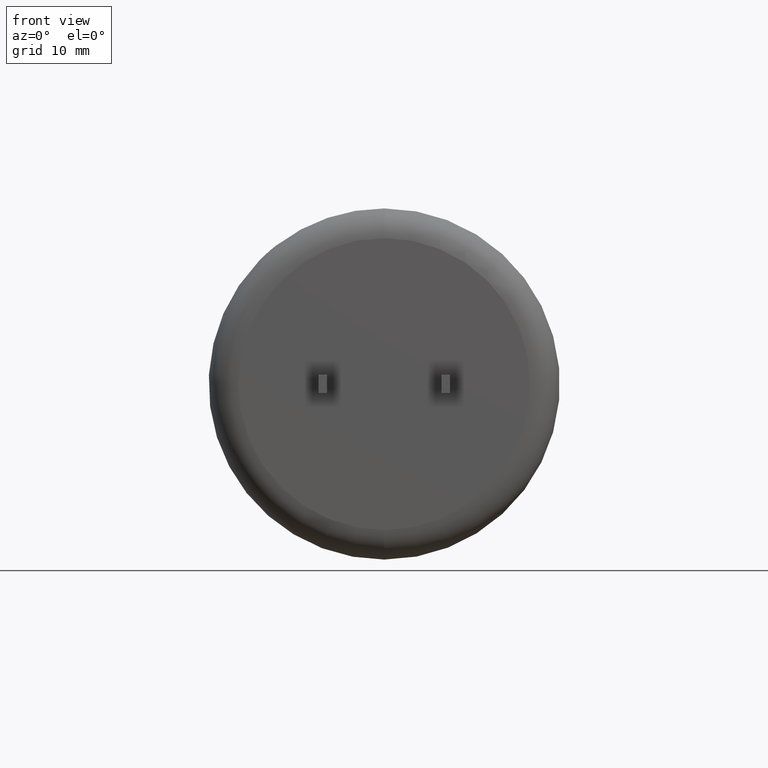
[diagram: clean part render]
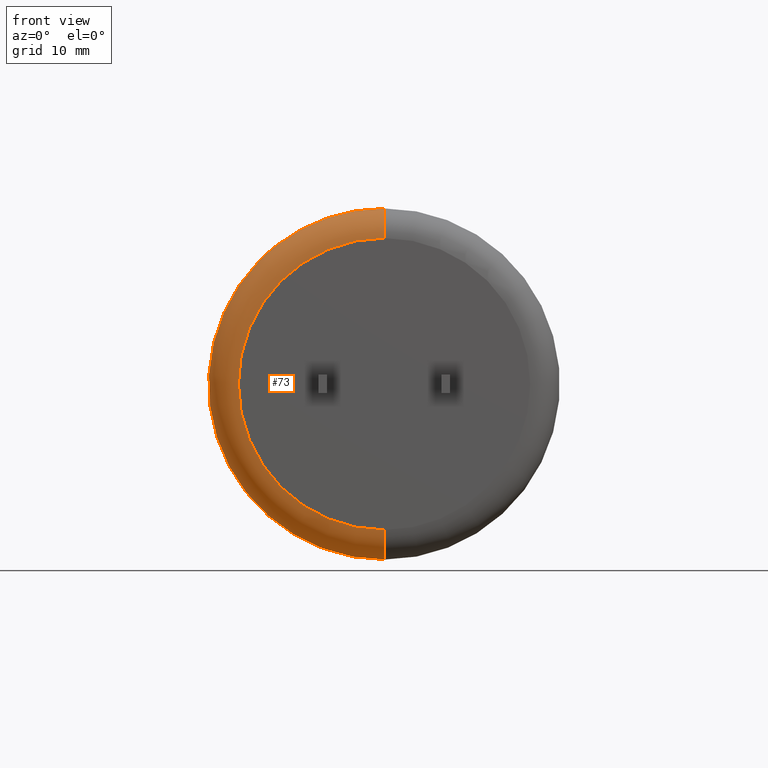
[diagram: same view with one face highlighted and labeled with its STEP entity id]
A machine part, front view. The second image highlights one B-rep face of the part: STEP entity #73.
In plain terms, the highlighted toroidal blend (fillet) surface has major radius 12.049 mm and minor (blend) radius 2.451 mm.
Its self-contained STEP definition (entity closure, byte-faithful):
#73 = ADVANCED_FACE ( 'NONE', ( #2052 ), #1314, .T. ) ;
#107 = CARTESIAN_POINT ( 'NONE',  ( -10.36606700977331400, 2.451000000000001800, 10.13876988341728800 ) ) ;
#122 = DIRECTION ( 'NONE',  ( 0.0000000000000000000, 0.0000000000000000000, 1.000000000000000000 ) ) ;
#140 = DIRECTION ( 'NONE',  ( 0.0000000000000000000, 0.0000000000000000000, 1.000000000000000000 ) ) ;
#173 = EDGE_CURVE ( 'NONE', #2027, #783, #1340, .T. ) ;
#208 = ORIENTED_EDGE ( 'NONE', *, *, #1608, .F. ) ;
#216 = ORIENTED_EDGE ( 'NONE', *, *, #835, .F. ) ;
#262 = CIRCLE ( 'NONE', #1952, 2.451000000000000100 ) ;
#272 = VERTEX_POINT ( 'NONE', #2107 ) ;
#471 = DIRECTION ( 'NONE',  ( 0.0000000000000000000, 0.0000000000000000000, 1.000000000000000000 ) ) ;
#475 = DIRECTION ( 'NONE',  ( 0.0000000000000000000, 1.000000000000000000, 0.0000000000000000000 ) ) ;
#565 = EDGE_CURVE ( 'NONE', #2446, #783, #2068, .T. ) ;
#612 = CARTESIAN_POINT ( 'NONE',  ( 0.0000000000000000000, 2.451000000000001800, 0.0000000000000000000 ) ) ;
#630 = CARTESIAN_POINT ( 'NONE',  ( 0.0000000000000000000, 2.451000000000001800, 0.0000000000000000000 ) ) ;
#644 = DIRECTION ( 'NONE',  ( 0.0000000000000000000, 0.0000000000000000000, 1.000000000000000000 ) ) ;
#742 = CARTESIAN_POINT ( 'NONE',  ( 0.0000000000000000000, 2.451000000000001800, 0.0000000000000000000 ) ) ;
#766 = AXIS2_PLACEMENT_3D ( 'NONE', #630, #1883, #2295 ) ;
#783 = VERTEX_POINT ( 'NONE', #1229 ) ;
#833 = DIRECTION ( 'NONE',  ( 0.0000000000000000000, 1.000000000000000000, 0.0000000000000000000 ) ) ;
#835 = EDGE_CURVE ( 'NONE', #2446, #272, #1012, .T. ) ;
#941 = ORIENTED_EDGE ( 'NONE', *, *, #565, .T. ) ;
#1012 = CIRCLE ( 'NONE', #2268, 12.04900000000000100 ) ;
#1027 = DIRECTION ( 'NONE',  ( -0.0000000000000000000, -1.000000000000000000, -0.0000000000000000000 ) ) ;
#1067 = DIRECTION ( 'NONE',  ( 1.000000000000000000, -0.0000000000000000000, 1.224646799147353200E-016 ) ) ;
#1178 = DIRECTION ( 'NONE',  ( 0.0000000000000000000, 1.000000000000000000, 0.0000000000000000000 ) ) ;
#1229 = CARTESIAN_POINT ( 'NONE',  ( 1.775737858763662000E-015, 2.451000000000001800, 14.50000000000000000 ) ) ;
#1236 = ORIENTED_EDGE ( 'NONE', *, *, #2242, .F. ) ;
#1310 = CIRCLE ( 'NONE', #1386, 14.50000000000000000 ) ;
#1314 = TOROIDAL_SURFACE ( 'NONE', #766, 12.04900000000000100, 2.451000000000000100 ) ;
#1333 = CARTESIAN_POINT ( 'NONE',  ( 0.0000000000000000000, 2.451000000000001800, 0.0000000000000000000 ) ) ;
#1336 = EDGE_LOOP ( 'NONE', ( #2159, #216, #941, #2618, #1236, #208 ) ) ;
#1340 = CIRCLE ( 'NONE', #1879, 14.50000000000000000 ) ;
#1386 = AXIS2_PLACEMENT_3D ( 'NONE', #742, #1178, #471 ) ;
#1559 = CARTESIAN_POINT ( 'NONE',  ( 0.0000000000000000000, 0.0000000000000000000, 12.04900000000000100 ) ) ;
#1608 = EDGE_CURVE ( 'NONE', #1742, #1989, #1310, .T. ) ;
#1742 = VERTEX_POINT ( 'NONE', #2238 ) ;
#1829 = AXIS2_PLACEMENT_3D ( 'NONE', #612, #833, #644 ) ;
#1879 = AXIS2_PLACEMENT_3D ( 'NONE', #1333, #475, #1923 ) ;
#1883 = DIRECTION ( 'NONE',  ( 0.0000000000000000000, 1.000000000000000000, 0.0000000000000000000 ) ) ;
#1923 = DIRECTION ( 'NONE',  ( 0.0000000000000000000, 0.0000000000000000000, 1.000000000000000000 ) ) ;
#1952 = AXIS2_PLACEMENT_3D ( 'NONE', #2562, #1067, #2326 ) ;
#1989 = VERTEX_POINT ( 'NONE', #107 ) ;
#2027 = VERTEX_POINT ( 'NONE', #2751 ) ;
#2052 = FACE_OUTER_BOUND ( 'NONE', #1336, .T. ) ;
#2068 = CIRCLE ( 'NONE', #2183, 2.451000000000000100 ) ;
#2107 = CARTESIAN_POINT ( 'NONE',  ( 1.625657393528153900E-015, 0.0000000000000000000, -12.04900000000000100 ) ) ;
#2159 = ORIENTED_EDGE ( 'NONE', *, *, #2694, .F. ) ;
#2183 = AXIS2_PLACEMENT_3D ( 'NONE', #2643, #2667, #122 ) ;
#2238 = CARTESIAN_POINT ( 'NONE',  ( 0.0000000000000000000, 2.451000000000001800, -14.50000000000000000 ) ) ;
#2242 = EDGE_CURVE ( 'NONE', #1989, #2027, #2566, .T. ) ;
#2268 = AXIS2_PLACEMENT_3D ( 'NONE', #2274, #1027, #140 ) ;
#2274 = CARTESIAN_POINT ( 'NONE',  ( 0.0000000000000000000, 0.0000000000000000000, 0.0000000000000000000 ) ) ;
#2295 = DIRECTION ( 'NONE',  ( 0.0000000000000000000, 0.0000000000000000000, 1.000000000000000000 ) ) ;
#2326 = DIRECTION ( 'NONE',  ( 1.224646799147352700E-016, 0.0000000000000000000, -1.000000000000000000 ) ) ;
#2446 = VERTEX_POINT ( 'NONE', #1559 ) ;
#2562 = CARTESIAN_POINT ( 'NONE',  ( 1.475576928292645800E-015, 2.451000000000001800, -12.04900000000000100 ) ) ;
#2566 = CIRCLE ( 'NONE', #1829, 14.50000000000000000 ) ;
#2618 = ORIENTED_EDGE ( 'NONE', *, *, #173, .F. ) ;
#2643 = CARTESIAN_POINT ( 'NONE',  ( 0.0000000000000000000, 2.451000000000001800, 12.04900000000000100 ) ) ;
#2667 = DIRECTION ( 'NONE',  ( -1.000000000000000000, 0.0000000000000000000, 0.0000000000000000000 ) ) ;
#2694 = EDGE_CURVE ( 'NONE', #272, #1742, #262, .T. ) ;
#2751 = CARTESIAN_POINT ( 'NONE',  ( -8.873595198949965700, 2.451000000000001800, 11.46775079277415100 ) ) ;